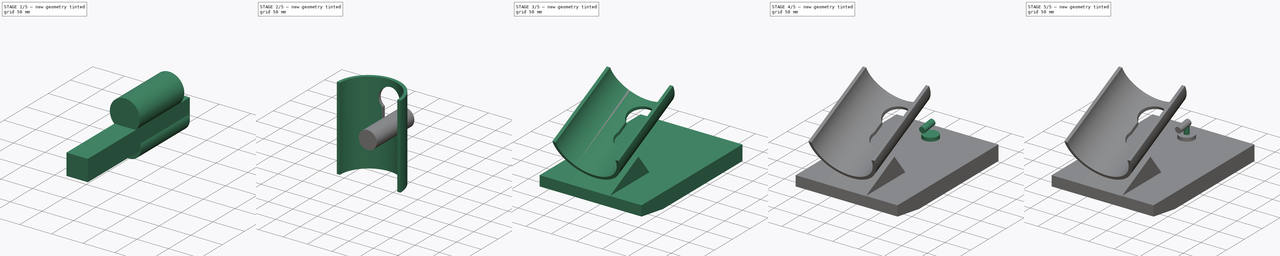
[diagram: build sequence overview — one tinted view per stage of 5, left to right]
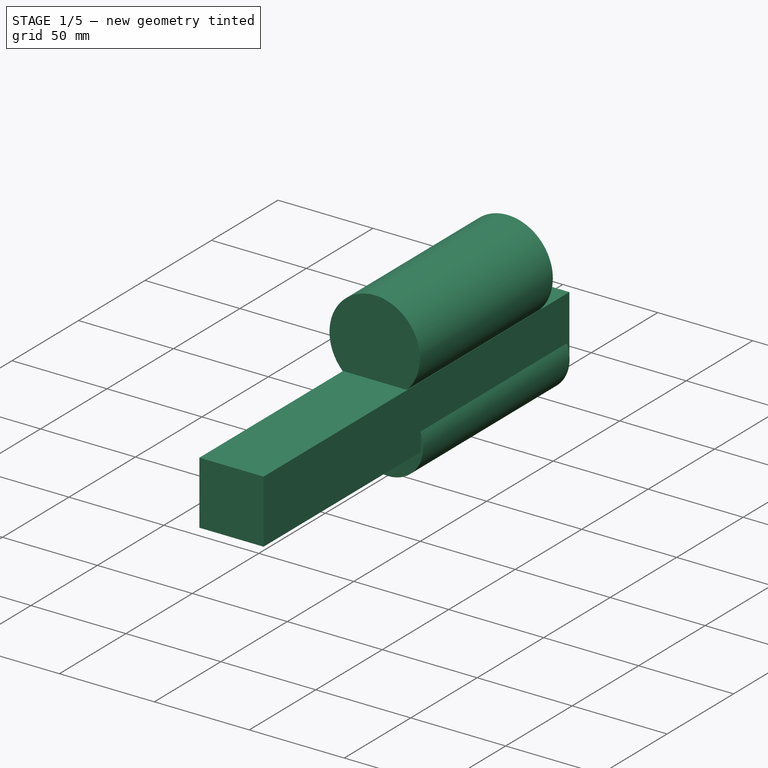
[diagram: stage 1 of 5 — iso view after this stage's code; geometry added in this stage tinted green]
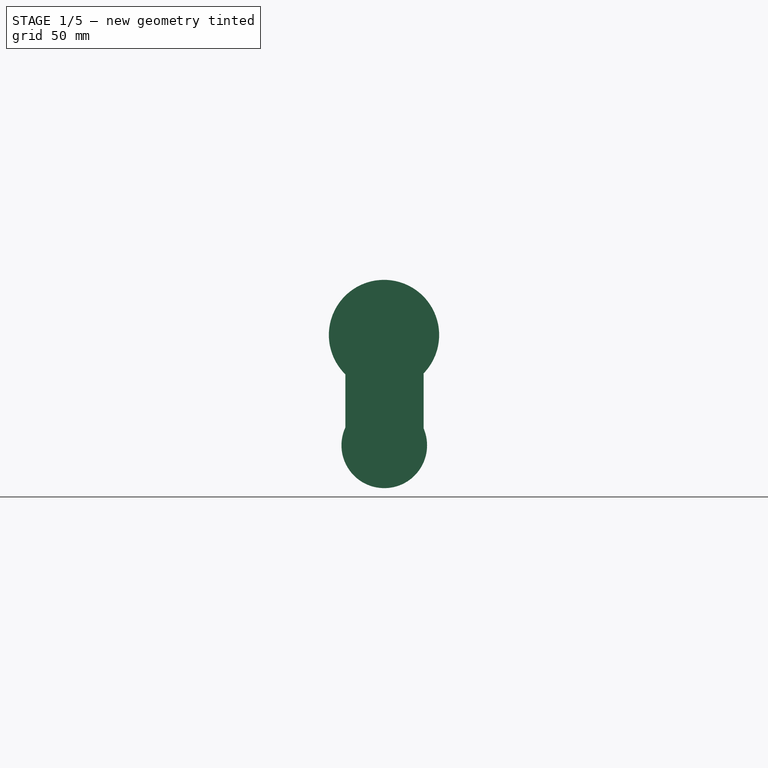
[diagram: stage 1 of 5 — front view after this stage's code; geometry added in this stage tinted green]
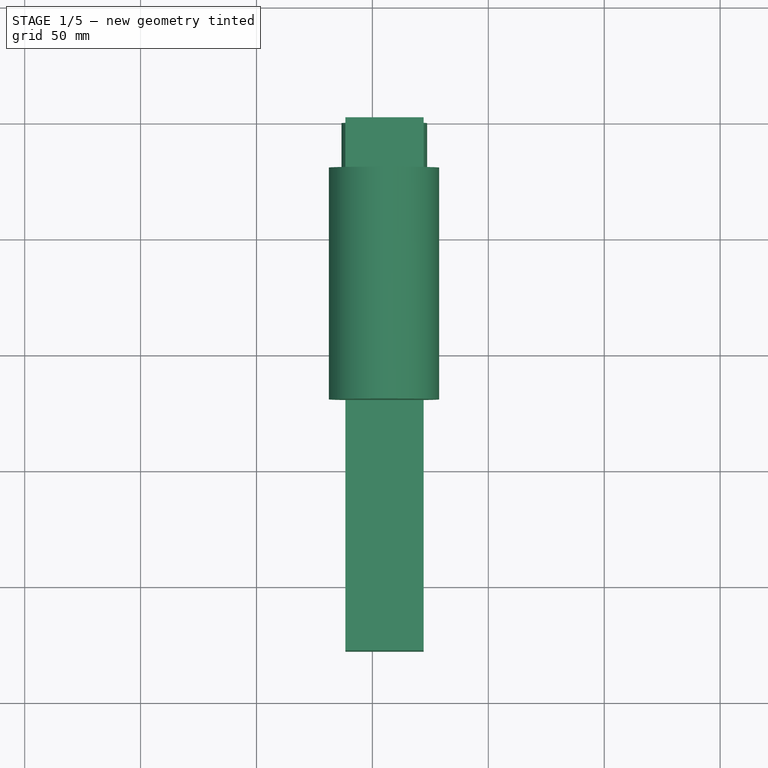
[diagram: stage 1 of 5 — top view after this stage's code; geometry added in this stage tinted green]
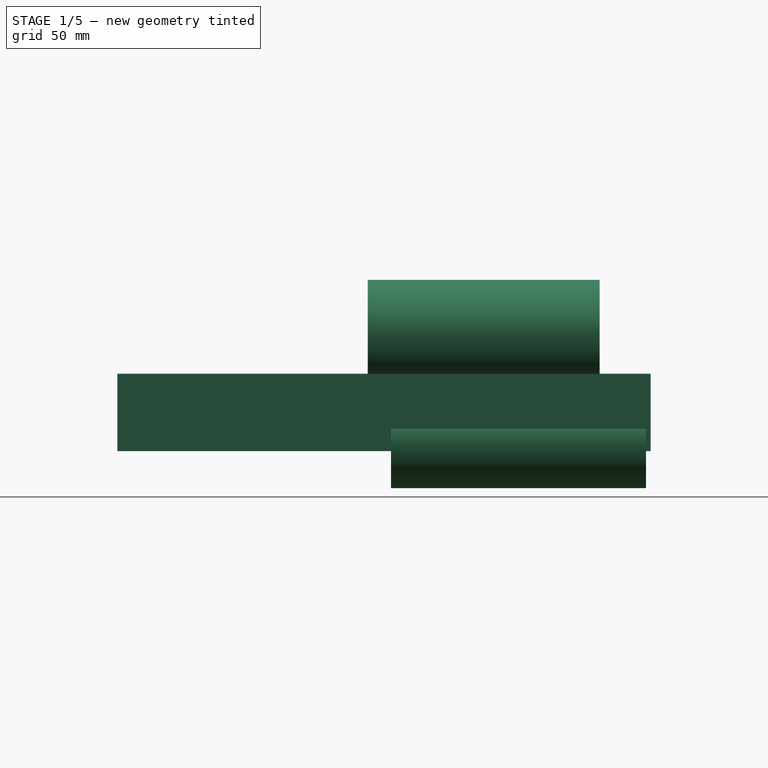
[diagram: stage 1 of 5 — right view after this stage's code; geometry added in this stage tinted green]
FCSTD DOCUMENT  (FreeCAD 0.16R6707 (Git))
Label: Calcetines-Mauricio
License: All rights reserved
LicenseURL: http://en.wikipedia.org/wiki/All_rights_reserved
objects: Sketcher::SketchObject×7, PartDesign::Pad×6, Part::Cut×3, Part::MultiFuse×3, Part::Cylinder×2, PartDesign::Pocket×1
note: 29 computed .brp shape members not serialized (recipe doc carries the construction recipe); baked Part::Feature solids carry a one-line shape summary decoded from their .brp

FEATURE [Sketcher::SketchObject] Sketch003
  Placement = pos=(5,80,-5) rot=(1,0,0;1.5708rad)
  sketch-geometry (1):
    g0: Circle CenterX=0.005311 CenterY=137.78 CenterZ=0 NormalX=0 NormalY=0 NormalZ=1 Radius=23.79
FEATURE [PartDesign::Pad] Pad002
  Length = 100
  Length2 = 100
  Placement = pos=(5,80,-5) rot=(1,0,0;1.5708rad)
  Sketch = -> Sketch003
  Type = 0
FEATURE [Sketcher::SketchObject] Sketch004
  Placement = pos=(0,0,0) rot=(1,0,0;1.5708rad)
  sketch-geometry (4):
    g0: LineSegment StartX=-11.6705 StartY=116.049 StartZ=0 EndX=22.1092 EndY=116.049 EndZ=0
    g1: LineSegment StartX=22.1092 StartY=116.049 StartZ=0 EndX=22.1092 EndY=82.7063 EndZ=0
    g2: LineSegment StartX=22.1092 StartY=82.7063 StartZ=0 EndX=-11.6705 EndY=82.7063 EndZ=0
    g3: LineSegment StartX=-11.6705 StartY=82.7063 StartZ=0 EndX=-11.6705 EndY=116.049 EndZ=0
  constraints (8):
    c: Coincident(g0,g1)
    c: Coincident(g1,g2)
    c: Coincident(g2,g3)
    c: Coincident(g3,g0)
    c: Horizontal(g0)
    c: Horizontal(g2)
    c: Vertical(g1)
    c: Vertical(g3)
FEATURE [PartDesign::Pad] Pad003
  Length = 128
  Length2 = 102
  Placement = pos=(0,0,0) rot=(1,0,0;1.5708rad)
  Sketch = -> Sketch004
  Type = 4
FEATURE [Sketcher::SketchObject] Sketch005
  Placement = pos=(0,0,0) rot=(1,0,0;1.5708rad)
  sketch-geometry (1):
    g0: Circle CenterX=5.12021 CenterY=85.1858 CenterZ=0 NormalX=0 NormalY=0 NormalZ=1 Radius=18.4643
FEATURE [PartDesign::Pad] Pad004
  Length = 10
  Length2 = 100
  Placement = pos=(0,0,0) rot=(1,0,0;1.5708rad)
  Sketch = -> Sketch005
  Type = 4
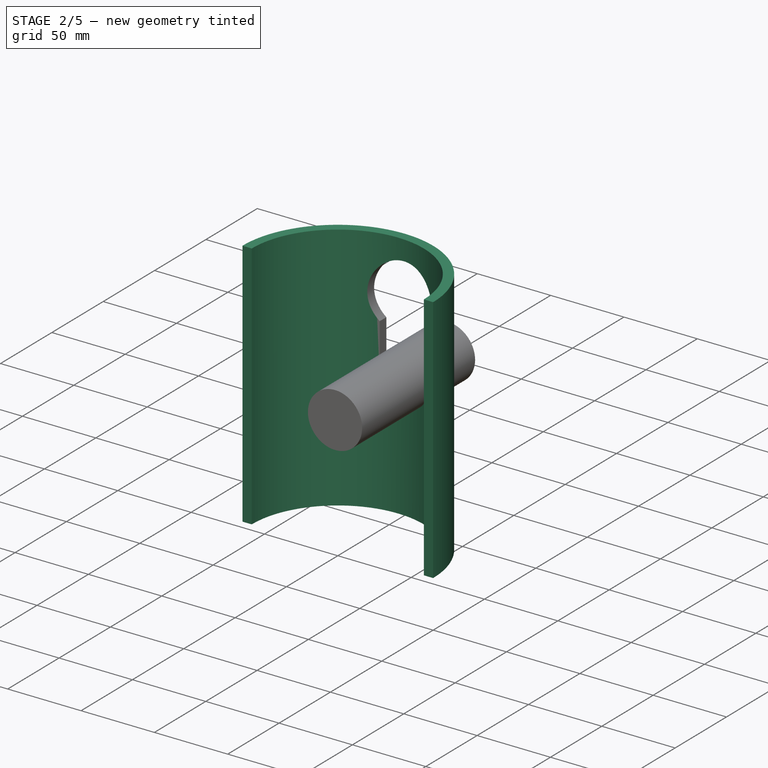
[diagram: stage 2 of 5 — iso view after this stage's code; geometry added in this stage tinted green]
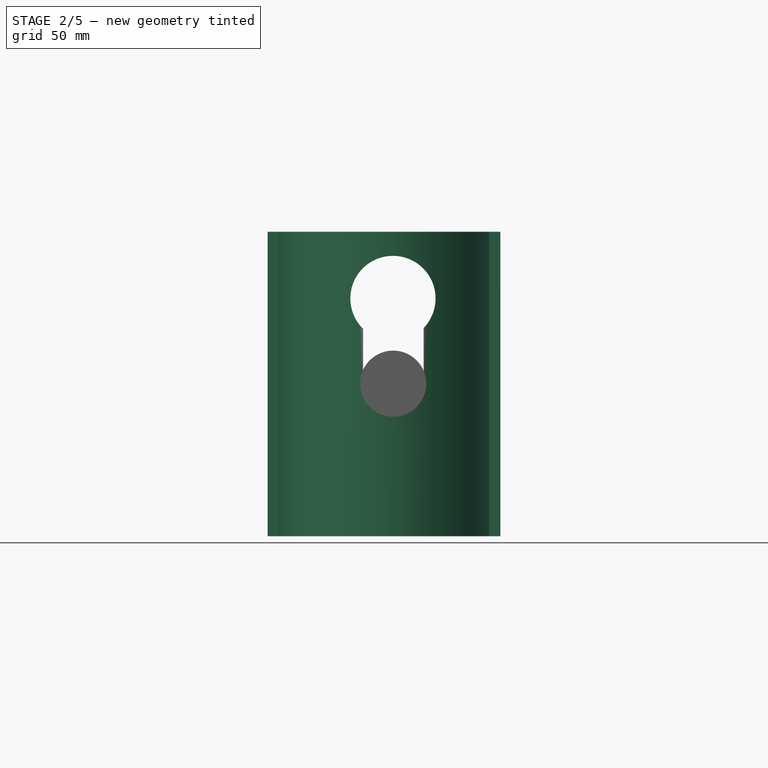
[diagram: stage 2 of 5 — front view after this stage's code; geometry added in this stage tinted green]
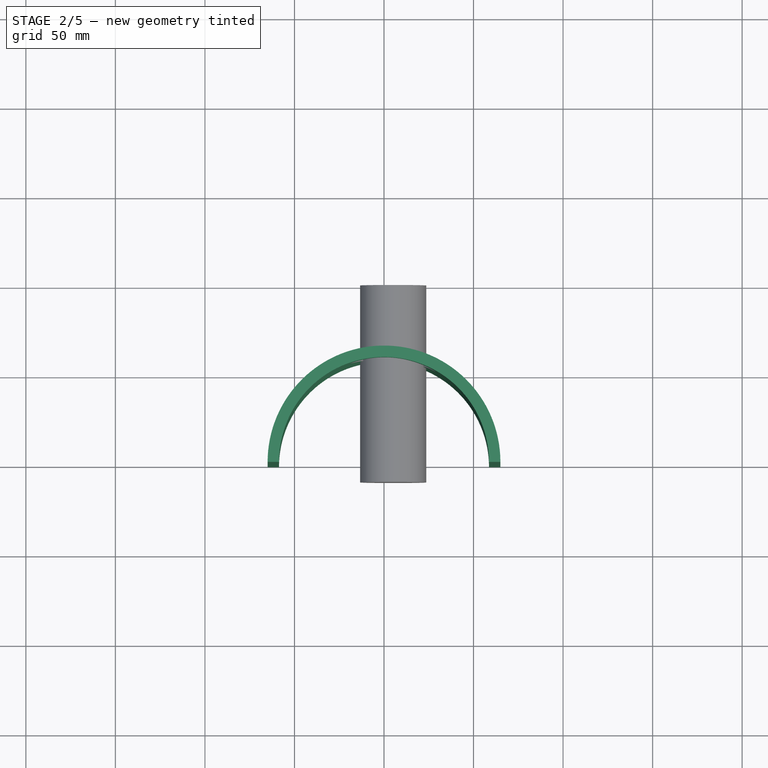
[diagram: stage 2 of 5 — top view after this stage's code; geometry added in this stage tinted green]
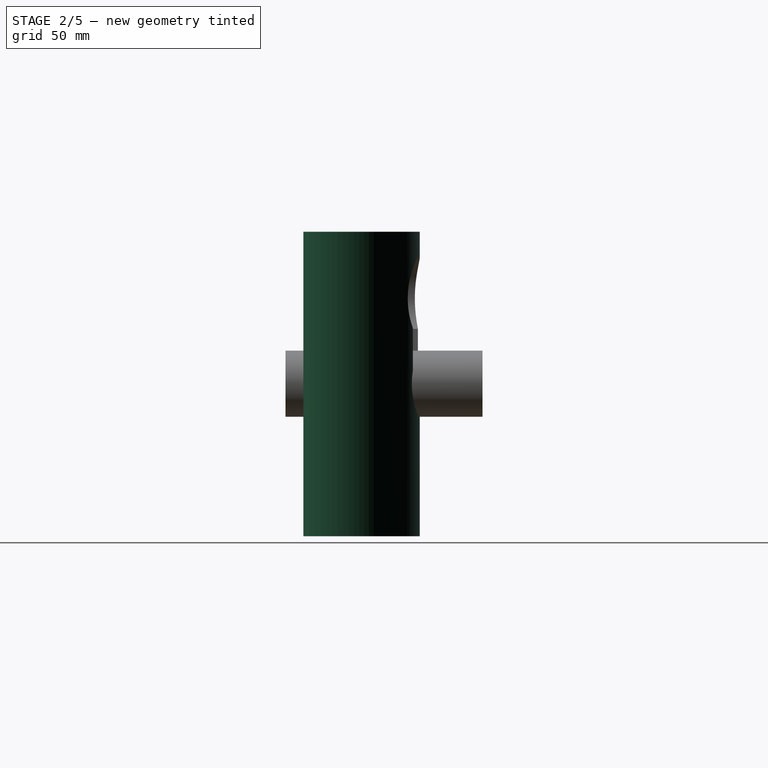
[diagram: stage 2 of 5 — right view after this stage's code; geometry added in this stage tinted green]
FEATURE [Sketcher::SketchObject] Sketch002
  Placement = pos=(0,0,170) rot=(0,0,1;0rad)
  sketch-geometry (1):
    g0: Circle CenterX=0 CenterY=0 CenterZ=0 NormalX=0 NormalY=0 NormalZ=1 Radius=58.6547
FEATURE [PartDesign::Pocket] Pocket
  Length = 5
  Sketch = -> Sketch002
  Type = 1
FEATURE [Part::Cut] Cut
  Base = -> Pocket
  Tool = -> Pad002
FEATURE [Part::Cut] Cut001
  Base = -> Cut
  Tool = -> Pad003
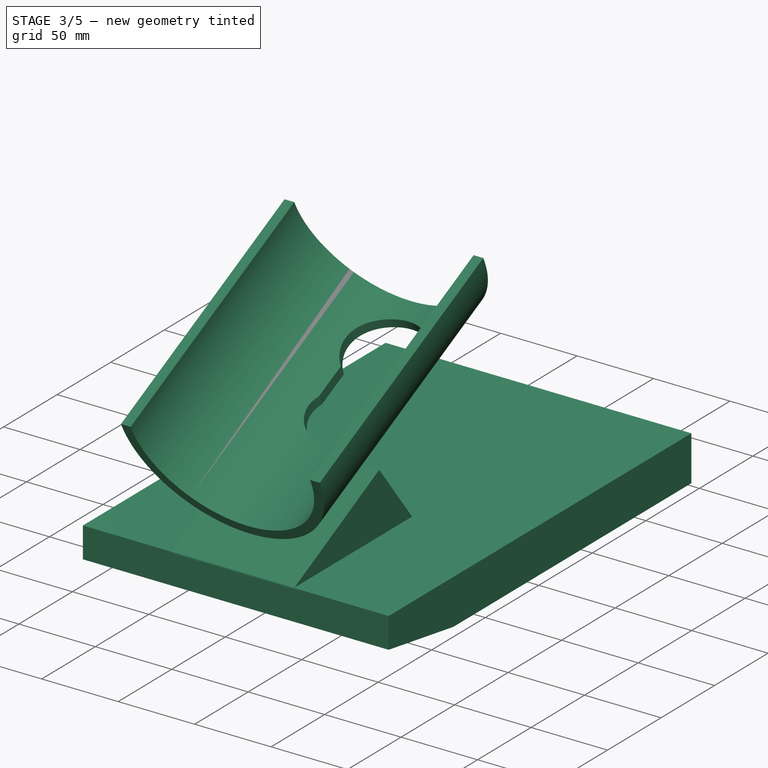
[diagram: stage 3 of 5 — iso view after this stage's code; geometry added in this stage tinted green]
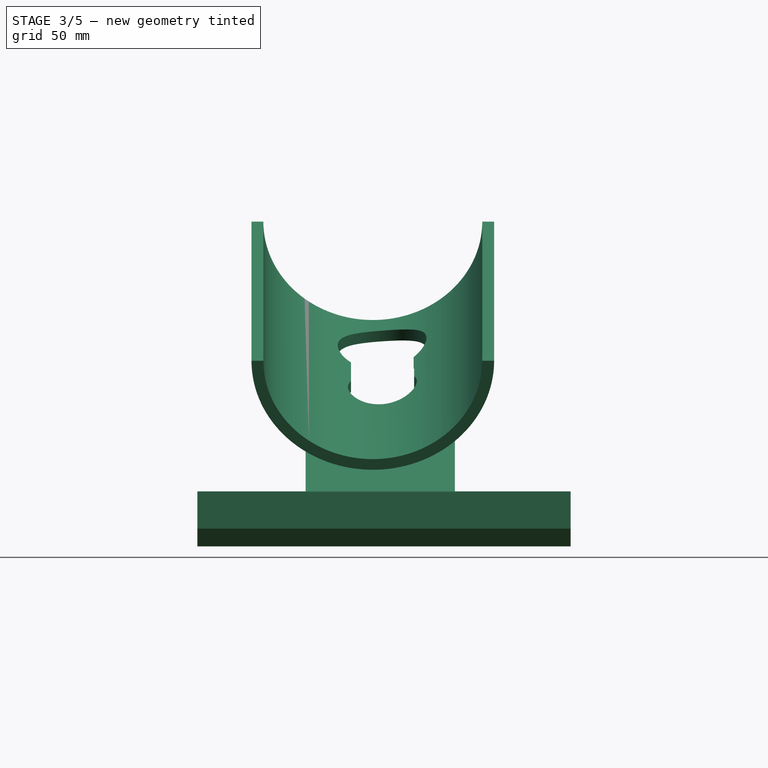
[diagram: stage 3 of 5 — front view after this stage's code; geometry added in this stage tinted green]
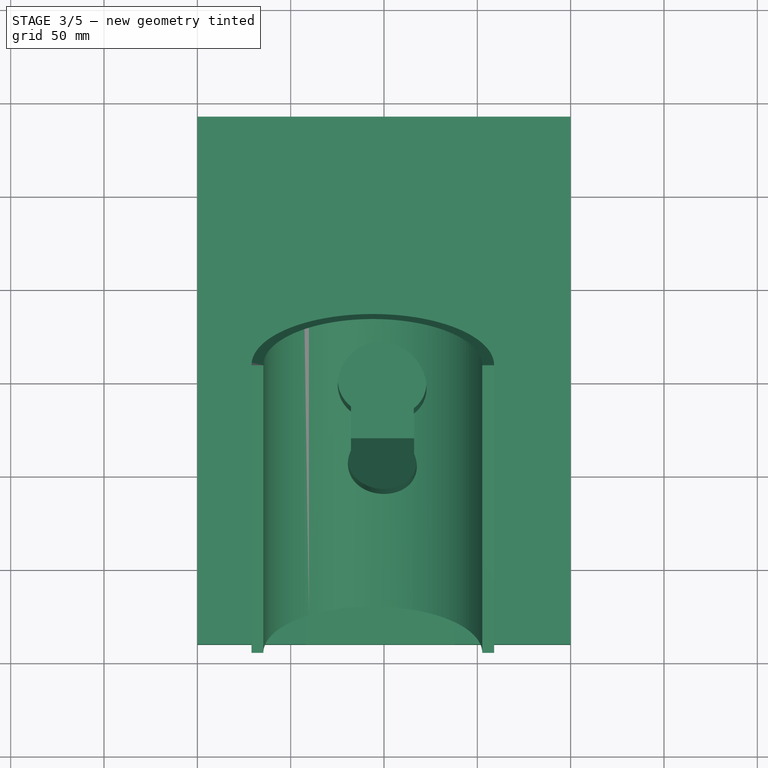
[diagram: stage 3 of 5 — top view after this stage's code; geometry added in this stage tinted green]
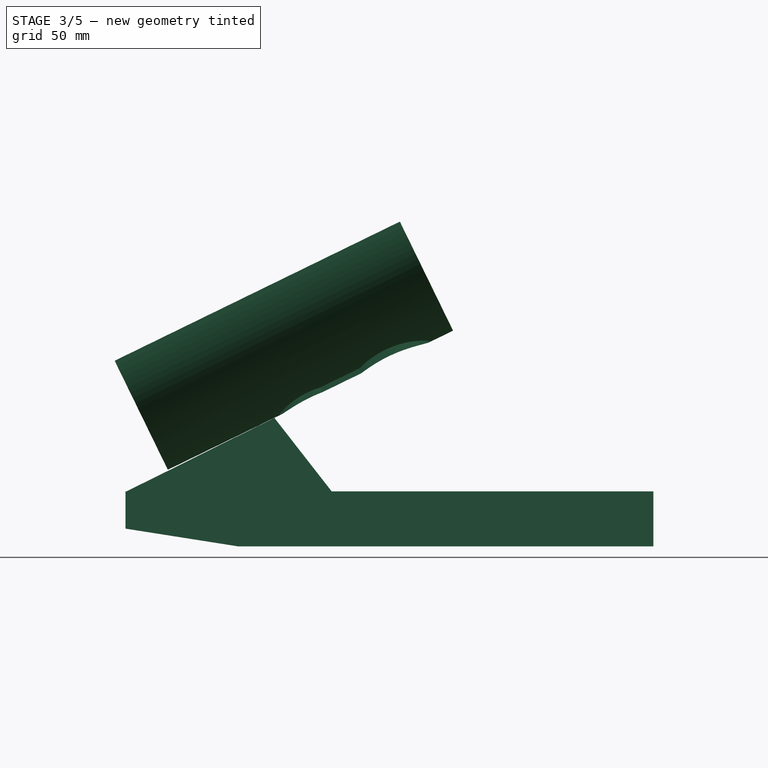
[diagram: stage 3 of 5 — right view after this stage's code; geometry added in this stage tinted green]
FEATURE [Sketcher::SketchObject] Sketch
  Placement = pos=(0,0,0) rot=(0.57735,0.57735,0.57735;2.0944rad)
  sketch-geometry (5):
    g0: LineSegment StartX=-90.1817 StartY=10.0245 StartZ=0 EndX=-90.1817 EndY=-9.95107 EndZ=0
    g1: LineSegment StartX=-90.1817 StartY=-9.95107 StartZ=0 EndX=-29.835 EndY=-19.46 EndZ=0
    g2: LineSegment StartX=-29.835 StartY=-19.46 StartZ=0 EndX=192.585 EndY=-19.46 EndZ=0
    g3: LineSegment StartX=192.585 StartY=-19.46 StartZ=0 EndX=192.585 EndY=10.0245 EndZ=0
    g4: LineSegment StartX=192.585 StartY=10.0245 StartZ=0 EndX=-90.1817 EndY=10.0245 EndZ=0
  constraints (9):
    c: Vertical(g0)
    c: Coincident(g0,g1)
    c: Coincident(g1,g2)
    c: Horizontal(g2)
    c: Coincident(g2,g3)
    c: Vertical(g3)
    c: Coincident(g3,g4)
    c: Coincident(g4,g0)
    c: Horizontal(g4)
FEATURE [PartDesign::Pad] Pad
  Length = 200
  Length2 = 100
  Placement = pos=(0,0,0) rot=(0.57735,0.57735,0.57735;2.0944rad)
  Sketch = -> Sketch
  Type = 0
FEATURE [Sketcher::SketchObject] Sketch001
  Placement = pos=(58,-10,-10) rot=(0.57735,0.57735,0.57735;2.0944rad)
  sketch-geometry (3):
    g0: LineSegment StartX=-80.3633 StartY=19.6304 StartZ=0 EndX=-0.441701 EndY=59.3776 EndZ=0
    g1: LineSegment StartX=-0.441701 StartY=59.3776 StartZ=0 EndX=30.5561 EndY=19.6304 EndZ=0
    g2: LineSegment StartX=30.5561 StartY=19.6304 StartZ=0 EndX=-80.3633 EndY=19.6304 EndZ=0
  constraints (4):
    c: Coincident(g0,g1)
    c: Coincident(g1,g2)
    c: Coincident(g2,g0)
    c: Horizontal(g2)
FEATURE [PartDesign::Pad] Pad001
  Length = 80
  Length2 = 100
  Placement = pos=(58,-10,-10) rot=(0.57735,0.57735,0.57735;2.0944rad)
  Sketch = -> Sketch001
  Type = 0
FEATURE [Part::Cut] Cut002
  Base = -> Cut001
  Placement = pos=(94,-96,80) rot=(-1,0,0;1.11701rad)
  Tool = -> Pad004
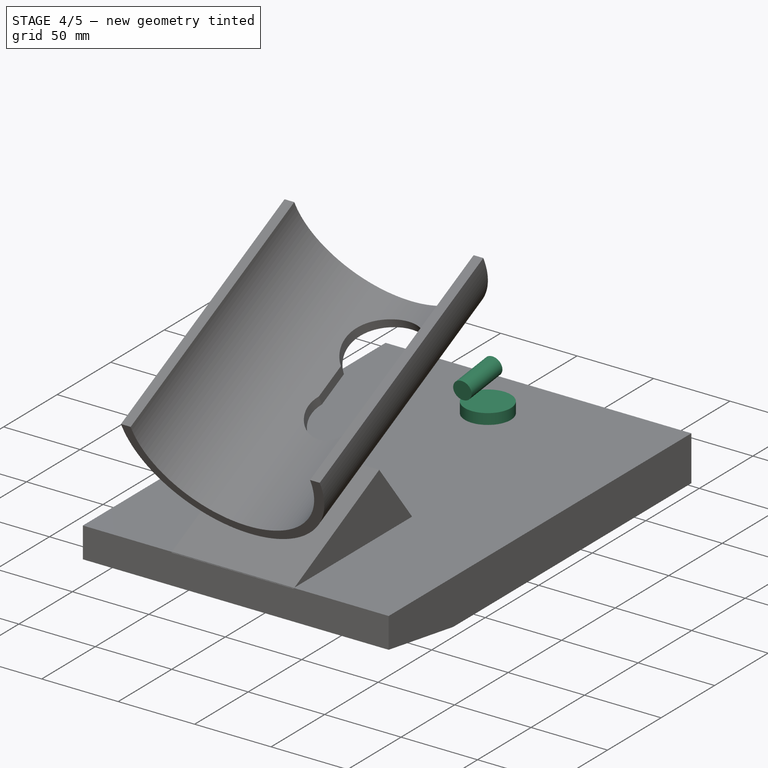
[diagram: stage 4 of 5 — iso view after this stage's code; geometry added in this stage tinted green]
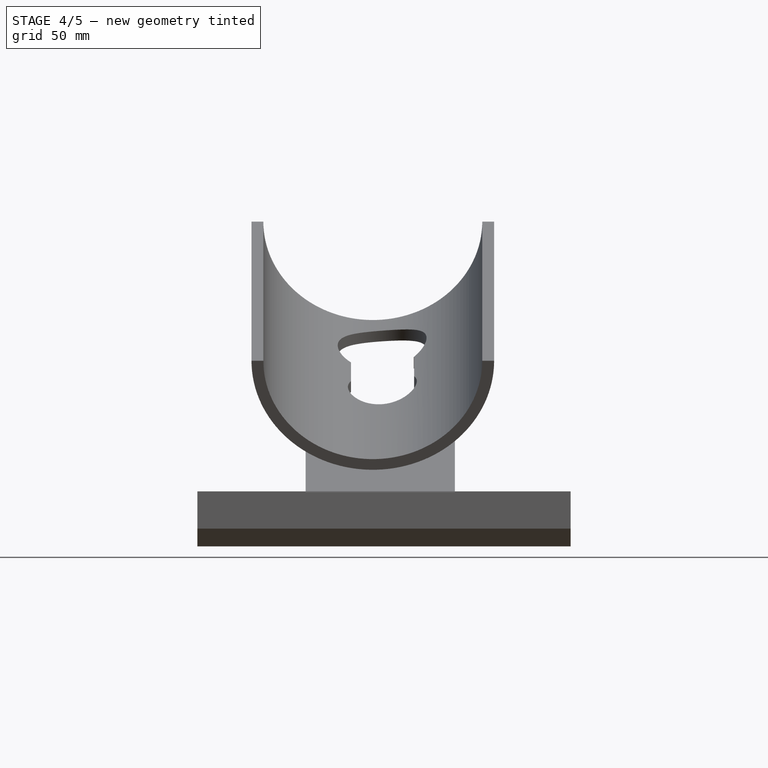
[diagram: stage 4 of 5 — front view after this stage's code; geometry added in this stage tinted green]
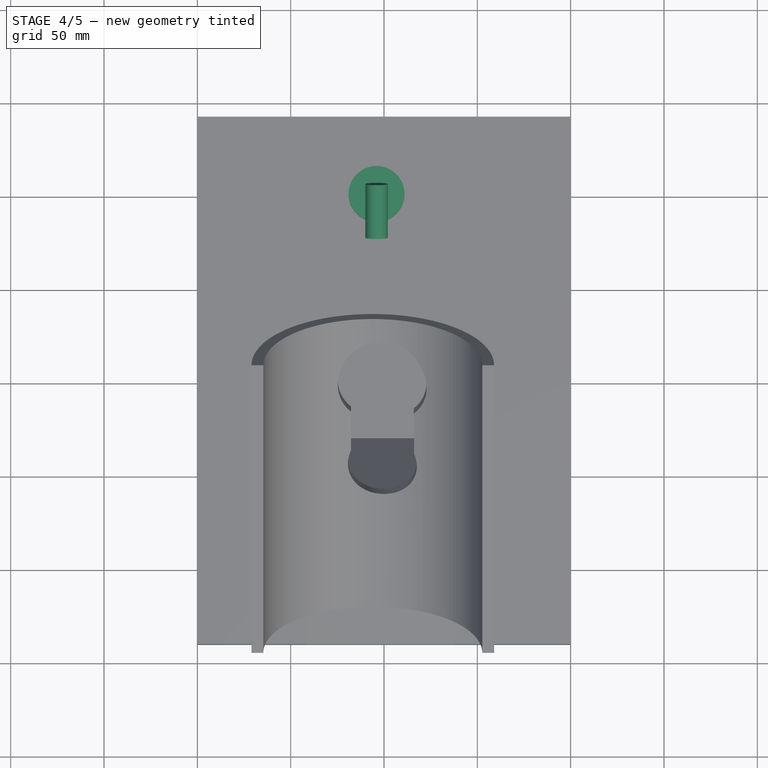
[diagram: stage 4 of 5 — top view after this stage's code; geometry added in this stage tinted green]
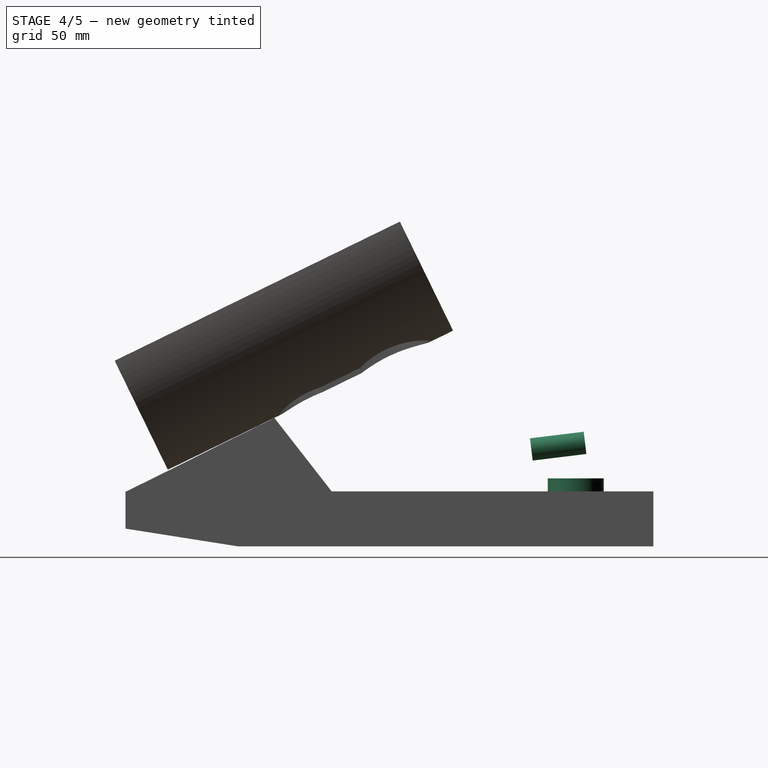
[diagram: stage 4 of 5 — right view after this stage's code; geometry added in this stage tinted green]
FEATURE [Part::Cylinder] Cylinder  label="Cilindro"
  Angle = 360
  Height = 17
  Placement = pos=(96,151,0) rot=(0,0,1;0rad)
  Radius = 15
FEATURE [Part::Cylinder] Cylinder001  label="Cilindro001"
  Angle = 360
  Height = 29
  Placement = pos=(96,156,36) rot=(1,0,0;1.69297rad)
  Radius = 6
FEATURE [Part::MultiFuse] Fusion001
  Shapes = -> [Cut002,Pad001,Pad]
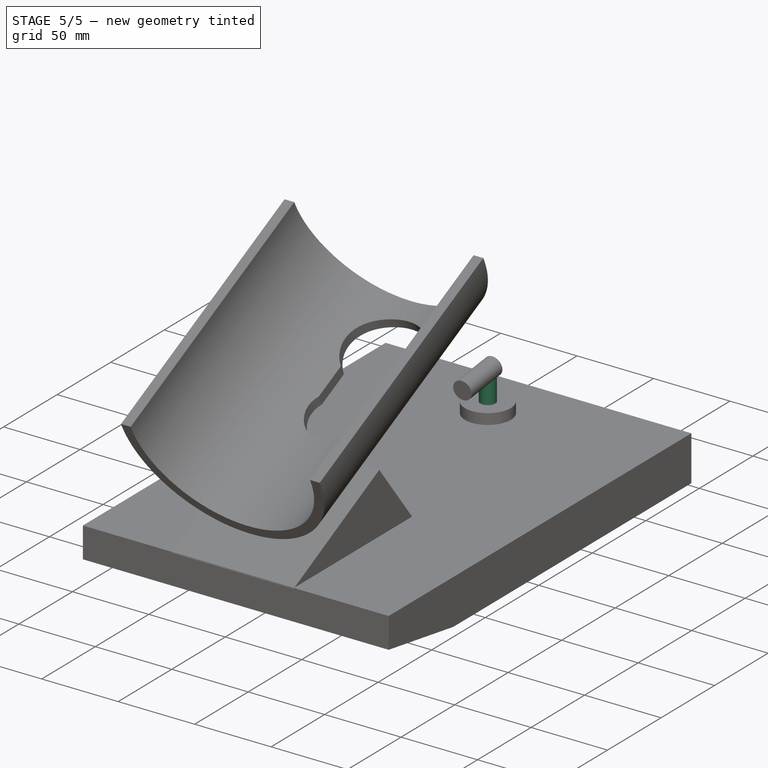
[diagram: stage 5 of 5 — iso view after this stage's code; geometry added in this stage tinted green]
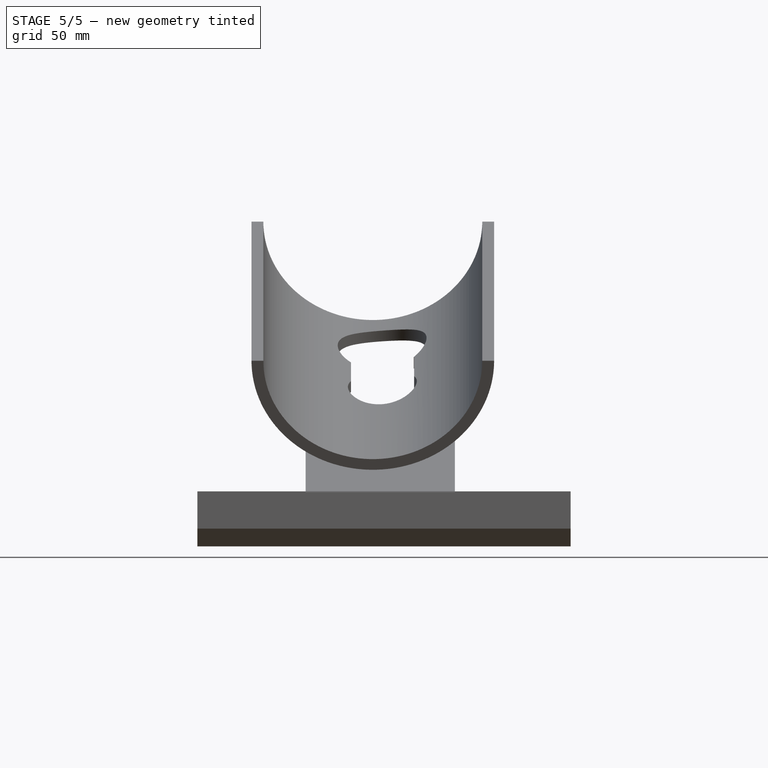
[diagram: stage 5 of 5 — front view after this stage's code; geometry added in this stage tinted green]
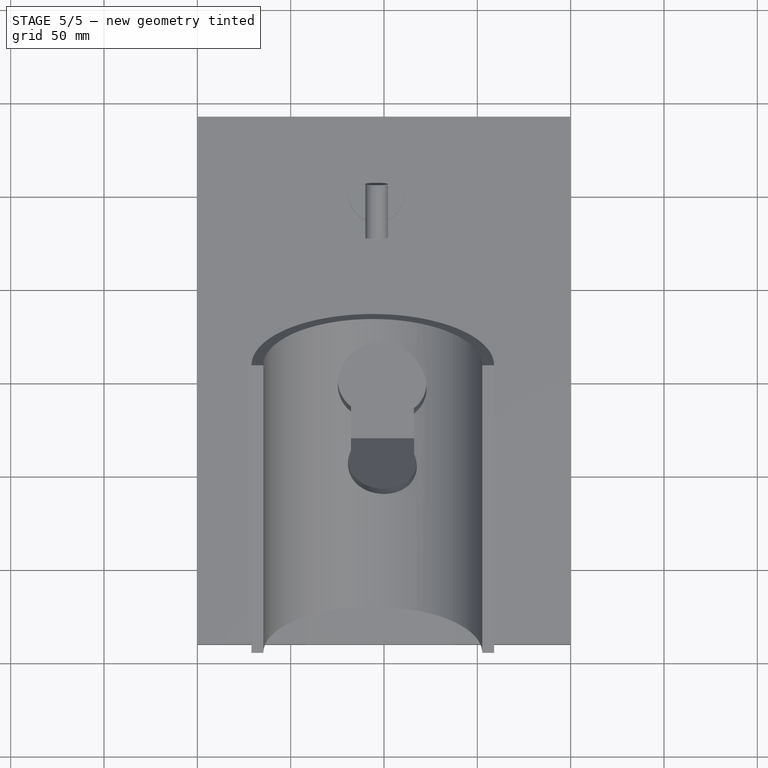
[diagram: stage 5 of 5 — top view after this stage's code; geometry added in this stage tinted green]
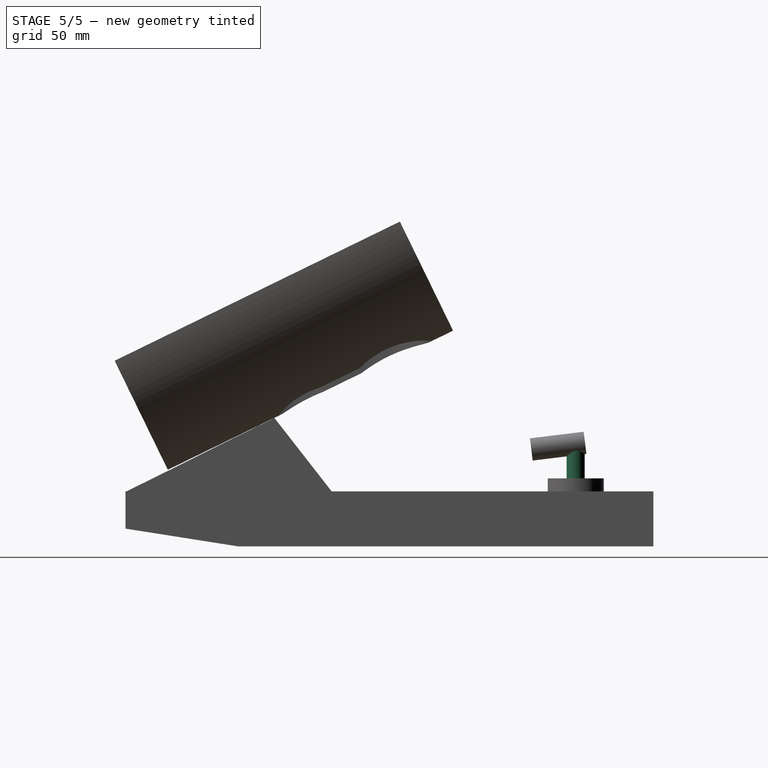
[diagram: stage 5 of 5 — right view after this stage's code; geometry added in this stage tinted green]
FEATURE [Sketcher::SketchObject] Sketch006
  Placement = pos=(96,151,17) rot=(0,0,1;0rad)
  Support = -> Cylinder [Face2]
  sketch-geometry (1):
    g0: Circle CenterX=0 CenterY=0 CenterZ=0 NormalX=0 NormalY=0 NormalZ=1 Radius=4.85871
  constraints (1):
    c: Coincident(g0,g-1)
FEATURE [PartDesign::Pad] Pad005
  Length = 20
  Length2 = 100
  Placement = pos=(96,151,0) rot=(0,0,1;0rad)
  Sketch = -> Sketch006
  Type = 0
FEATURE [Part::MultiFuse] Fusion
  Shapes = -> [Pad005,Cylinder001]
FEATURE [Part::MultiFuse] Fusion002
  Shapes = -> [Fusion001,Fusion]
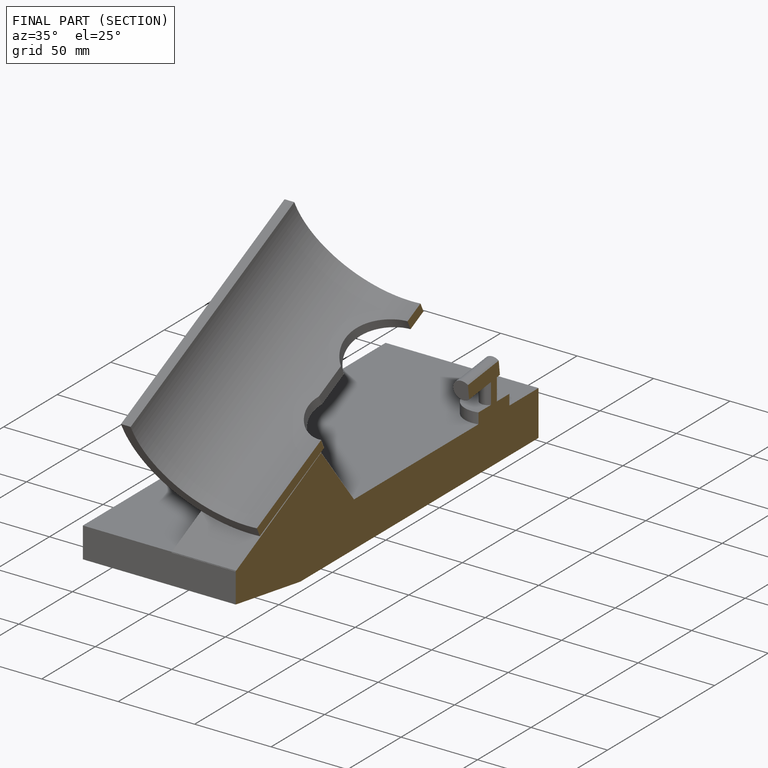
[diagram: finished part — half-section view (interior)]
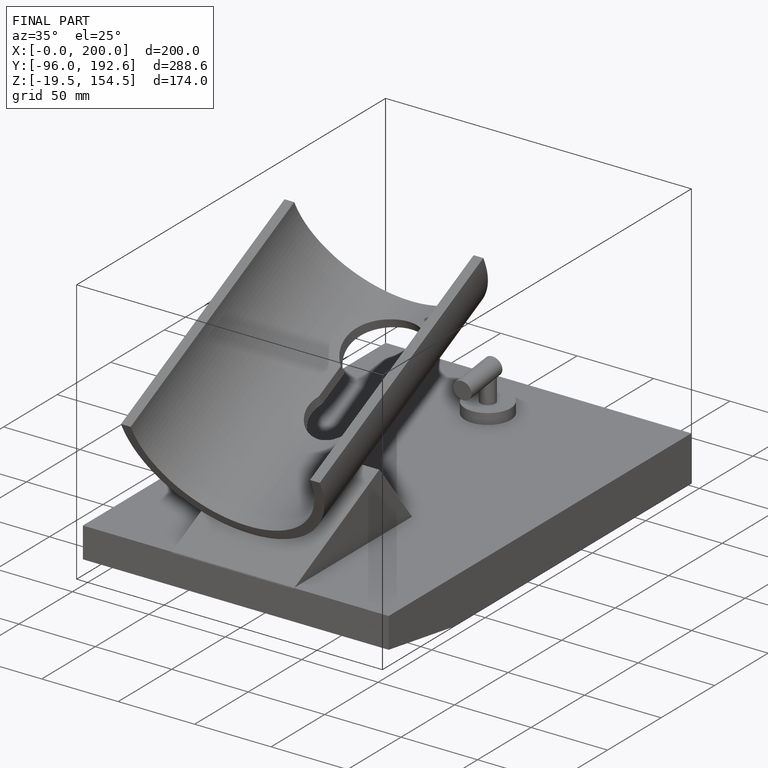
[diagram: finished part — iso view with bounding-box wireframe]
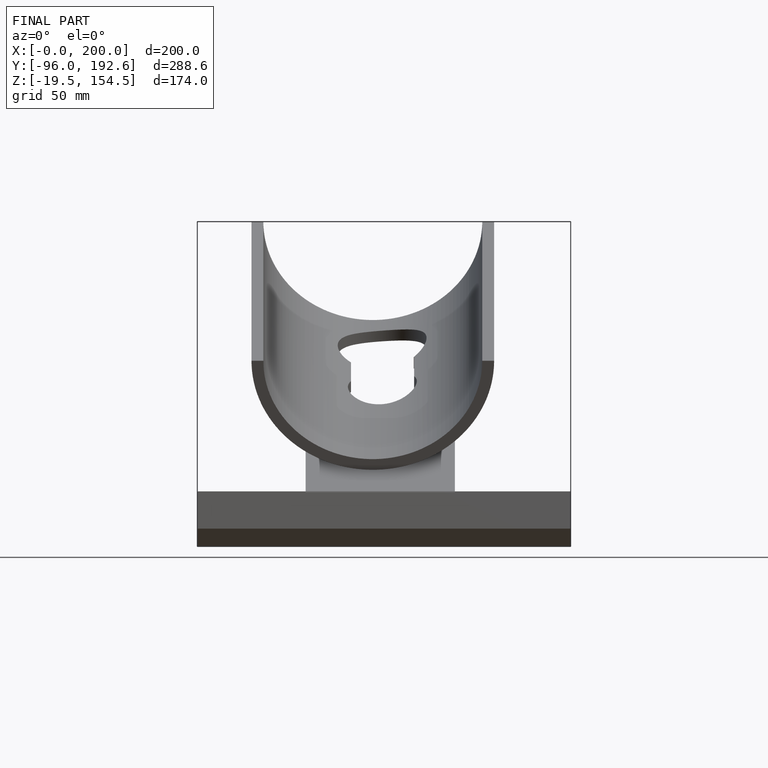
[diagram: finished part — front view with bounding-box wireframe]
